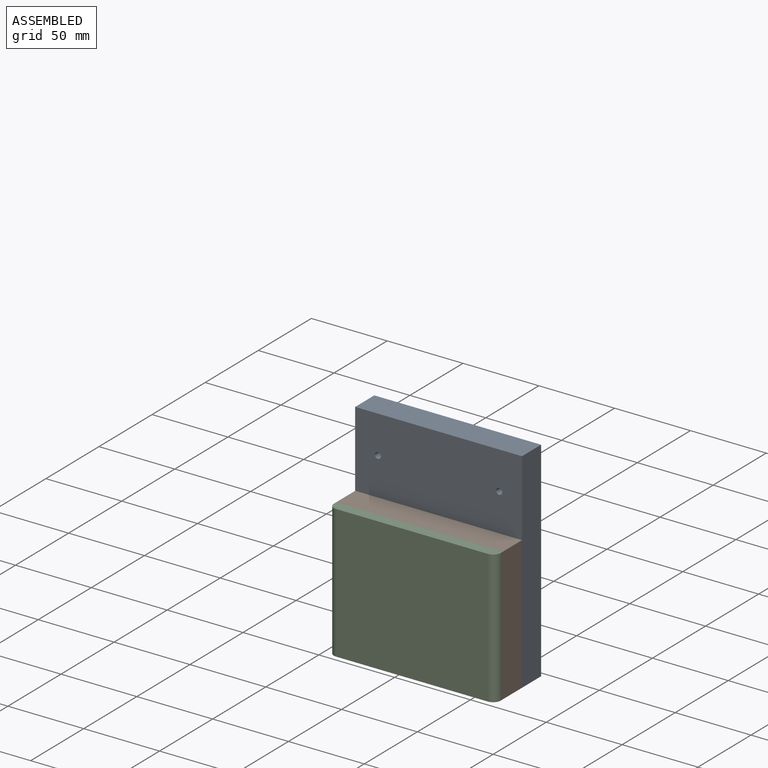
[diagram: assembled view]
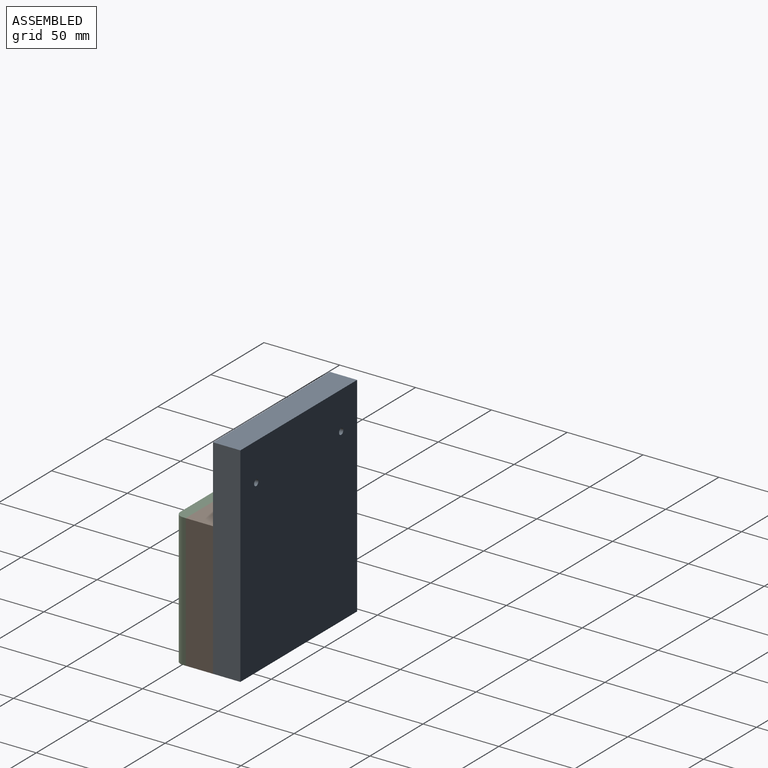
[diagram: assembled view, second angle]
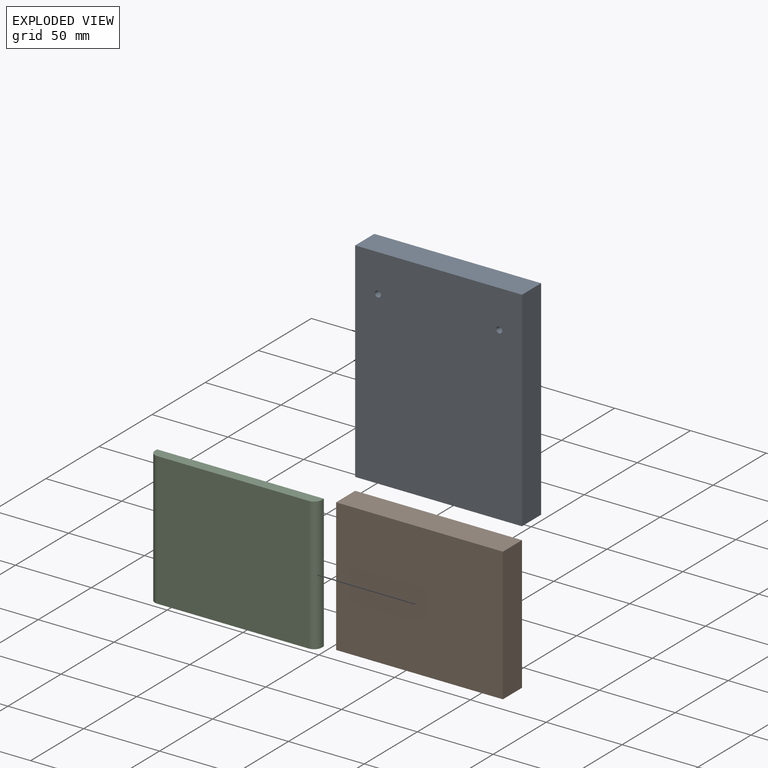
[diagram: exploded view]
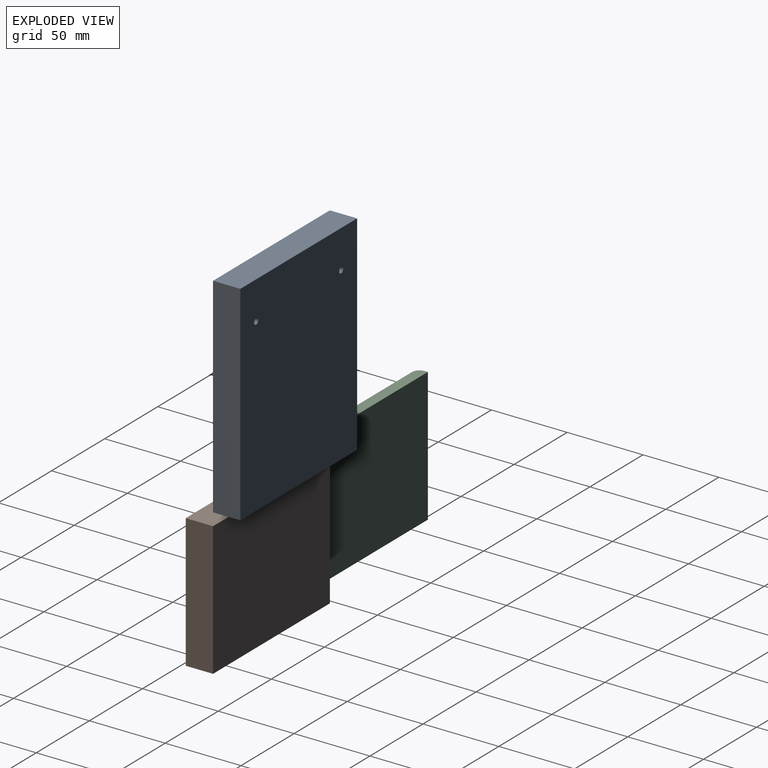
[diagram: exploded view, second angle]
ASSEMBLY  parts=3 mates=2
PART A: 8 faces, bbox 110x18x138 mm
  f0: plane 110x18mm, normal (0,0,1), area 1980mm2, adj f1,f5,f6,f7
  f1: plane 138x18mm, normal (-1,0,0), area 2484mm2, adj f0,f2,f6,f7
  f2: plane 110x18mm, normal (0,0,-1), area 1980mm2, adj f1,f5,f6,f7
  f3: cylinder r=2mm len=18mm, axis (0,1,0), area 226.2mm2, adj f6,f7
  f4: cylinder r=2mm len=18mm, axis (0,1,0), area 226.2mm2, adj f6,f7
  f5: plane 138x18mm, normal (1,0,0), area 2484mm2, adj f0,f2,f6,f7
  f6: plane 138x110mm, normal (0,-1,0), area 15154.9mm2, adj f0,f1,f2,f3,f4,f5
  f7: plane 138x110mm, normal (0,1,0), area 15154.9mm2, adj f0,f1,f2,f3,f4,f5
PART B: 6 faces, bbox 110x18x88 mm
  f0: plane 110x18mm, normal (0,0,1), area 1980mm2, adj f1,f3,f4,f5
  f1: plane 88x18mm, normal (-1,0,0), area 1584mm2, adj f0,f2,f4,f5
  f2: plane 110x18mm, normal (0,0,-1), area 1980mm2, adj f1,f3,f4,f5
  f3: plane 88x18mm, normal (1,0,0), area 1584mm2, adj f0,f2,f4,f5
  f4: plane 110x88mm, normal (0,-1,0), area 9680mm2, adj f0,f1,f2,f3
  f5: plane 110x88mm, normal (0,1,0), area 9680mm2, adj f0,f1,f2,f3
PART C: 8 faces, bbox 110x7x88 mm
  f0: plane 88x2mm, normal (1,0,0), area 176mm2, adj f1,f3,f5,f7
  f1: plane 110x7mm, normal (0,0,1), area 759.3mm2, adj f0,f2,f4,f5,f6,f7
  f2: plane 88x2mm, normal (-1,0,0), area 176mm2, adj f1,f3,f5,f6
  f3: plane 110x7mm, normal (0,0,-1), area 759.3mm2, adj f0,f2,f4,f5,f6,f7
  f4: plane 100x88mm, normal (0,-1,0), area 8800mm2, adj f1,f3,f6,f7
  f5: plane 110x88mm, normal (0,1,0), area 9680mm2, adj f0,f1,f2,f3
  f6: cylinder r=5mm len=88mm, axis (0,0,1), area 691.2mm2, adj f1,f2,f3,f4
  f7: cylinder r=5mm len=88mm, axis (0,0,-1), area 691.2mm2, adj f0,f1,f3,f4
PLACE A t=(39.39,23.57,16.36)mm
PLACE B t=(39.39,176.12,-41.28)mm
PLACE C t=(57.39,407.21,-41.81)mm
MATE fastened C.f2 <-> B.f1  axis (-1,0,0) through (57.39,-44.26,-79.21)mm
MATE fastened A.f2 <-> B.f2  axis (0,0,-1) through (57.39,-26.26,-79.21)mm
